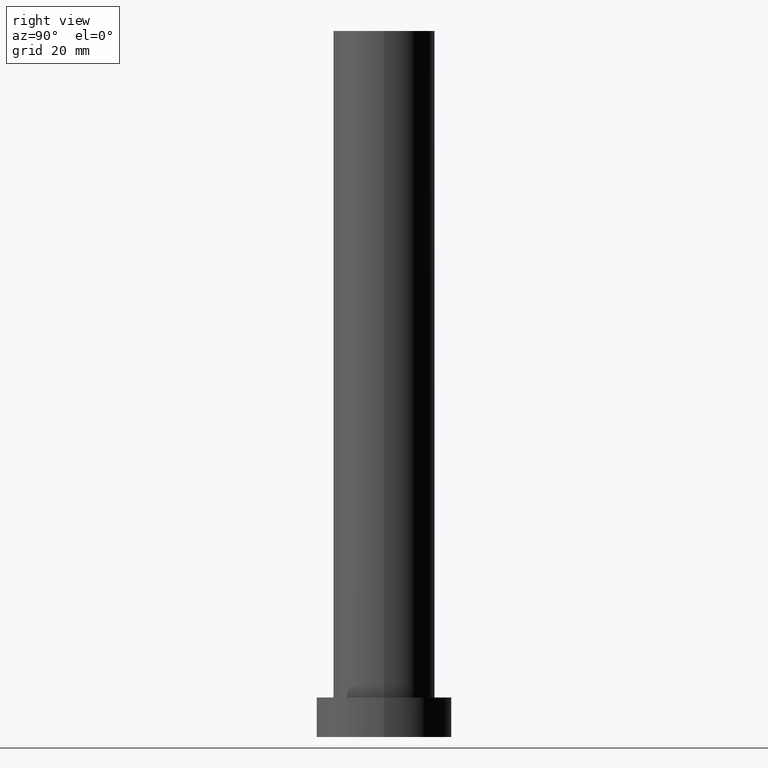
[diagram: clean part render]
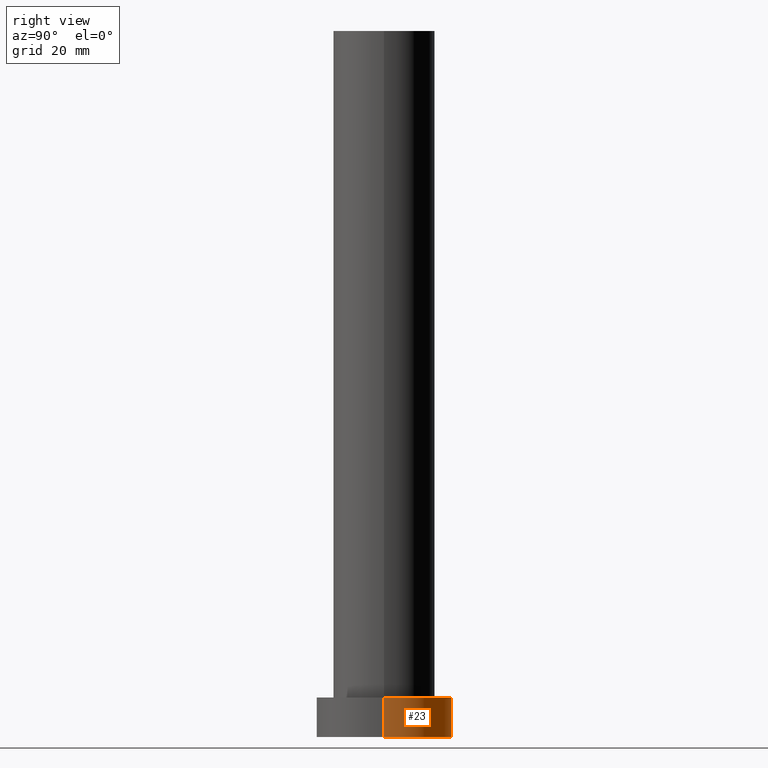
[diagram: same view with one face highlighted and labeled with its STEP entity id]
A machine part, right view. The second image highlights one B-rep face of the part: STEP entity #23.
In plain terms, the highlighted cylindrical surface (partial cylindrical patch) has radius 12 mm, axis along (-0, -0, -1).
Its self-contained STEP definition (entity closure, byte-faithful):
#4 = AXIS2_PLACEMENT_3D ( 'NONE', #183, #78, #244 ) ;
#13 = EDGE_LOOP ( 'NONE', ( #94, #211, #163, #121 ) ) ;
#16 = AXIS2_PLACEMENT_3D ( 'NONE', #229, #213, #140 ) ;
#23 = ADVANCED_FACE ( 'NONE', ( #168 ), #164, .T. ) ;
#40 = LINE ( 'NONE', #53, #157 ) ;
#49 = VERTEX_POINT ( 'NONE', #122 ) ;
#53 = CARTESIAN_POINT ( 'NONE',  ( 12.00000000000000178, 1.469576158976824144E-15, 7.000000000000000000 ) ) ;
#68 = EDGE_CURVE ( 'NONE', #134, #95, #204, .T. ) ;
#78 = DIRECTION ( 'NONE',  ( 0.000000000000000000, 0.000000000000000000, 1.000000000000000000 ) ) ;
#83 = EDGE_CURVE ( 'NONE', #240, #95, #192, .T. ) ;
#93 = DIRECTION ( 'NONE',  ( 0.000000000000000000, 0.000000000000000000, 1.000000000000000000 ) ) ;
#94 = ORIENTED_EDGE ( 'NONE', *, *, #233, .F. ) ;
#95 = VERTEX_POINT ( 'NONE', #214 ) ;
#112 = EDGE_CURVE ( 'NONE', #49, #240, #40, .T. ) ;
#120 = CARTESIAN_POINT ( 'NONE',  ( 12.00000000000000178, 1.469576158976824144E-15, 0.000000000000000000 ) ) ;
#121 = ORIENTED_EDGE ( 'NONE', *, *, #68, .F. ) ;
#122 = CARTESIAN_POINT ( 'NONE',  ( 12.00000000000000178, 1.469576158976824144E-15, 7.000000000000000000 ) ) ;
#134 = VERTEX_POINT ( 'NONE', #203 ) ;
#140 = DIRECTION ( 'NONE',  ( -1.000000000000000000, 0.000000000000000000, 0.000000000000000000 ) ) ;
#147 = DIRECTION ( 'NONE',  ( -0.000000000000000000, -0.000000000000000000, -1.000000000000000000 ) ) ;
#157 = VECTOR ( 'NONE', #224, 1000.000000000000000 ) ;
#162 = CARTESIAN_POINT ( 'NONE',  ( 0.000000000000000000, 0.000000000000000000, 7.000000000000000000 ) ) ;
#163 = ORIENTED_EDGE ( 'NONE', *, *, #83, .T. ) ;
#164 = CYLINDRICAL_SURFACE ( 'NONE', #16, 12.00000000000000178 ) ;
#168 = FACE_OUTER_BOUND ( 'NONE', #13, .T. ) ;
#183 = CARTESIAN_POINT ( 'NONE',  ( 0.000000000000000000, 0.000000000000000000, 0.000000000000000000 ) ) ;
#189 = CARTESIAN_POINT ( 'NONE',  ( -12.00000000000000178, 0.000000000000000000, 7.000000000000000000 ) ) ;
#192 = CIRCLE ( 'NONE', #4, 12.00000000000000178 ) ;
#194 = AXIS2_PLACEMENT_3D ( 'NONE', #162, #93, #195 ) ;
#195 = DIRECTION ( 'NONE',  ( 1.000000000000000000, 0.000000000000000000, 0.000000000000000000 ) ) ;
#203 = CARTESIAN_POINT ( 'NONE',  ( -12.00000000000000178, 0.000000000000000000, 7.000000000000000000 ) ) ;
#204 = LINE ( 'NONE', #189, #207 ) ;
#207 = VECTOR ( 'NONE', #147, 1000.000000000000000 ) ;
#211 = ORIENTED_EDGE ( 'NONE', *, *, #112, .T. ) ;
#213 = DIRECTION ( 'NONE',  ( -0.000000000000000000, -0.000000000000000000, -1.000000000000000000 ) ) ;
#214 = CARTESIAN_POINT ( 'NONE',  ( -12.00000000000000178, 0.000000000000000000, 0.000000000000000000 ) ) ;
#217 = CIRCLE ( 'NONE', #194, 12.00000000000000178 ) ;
#224 = DIRECTION ( 'NONE',  ( -0.000000000000000000, -0.000000000000000000, -1.000000000000000000 ) ) ;
#229 = CARTESIAN_POINT ( 'NONE',  ( 0.000000000000000000, 0.000000000000000000, 7.000000000000000000 ) ) ;
#233 = EDGE_CURVE ( 'NONE', #49, #134, #217, .T. ) ;
#240 = VERTEX_POINT ( 'NONE', #120 ) ;
#244 = DIRECTION ( 'NONE',  ( 1.000000000000000000, 0.000000000000000000, 0.000000000000000000 ) ) ;